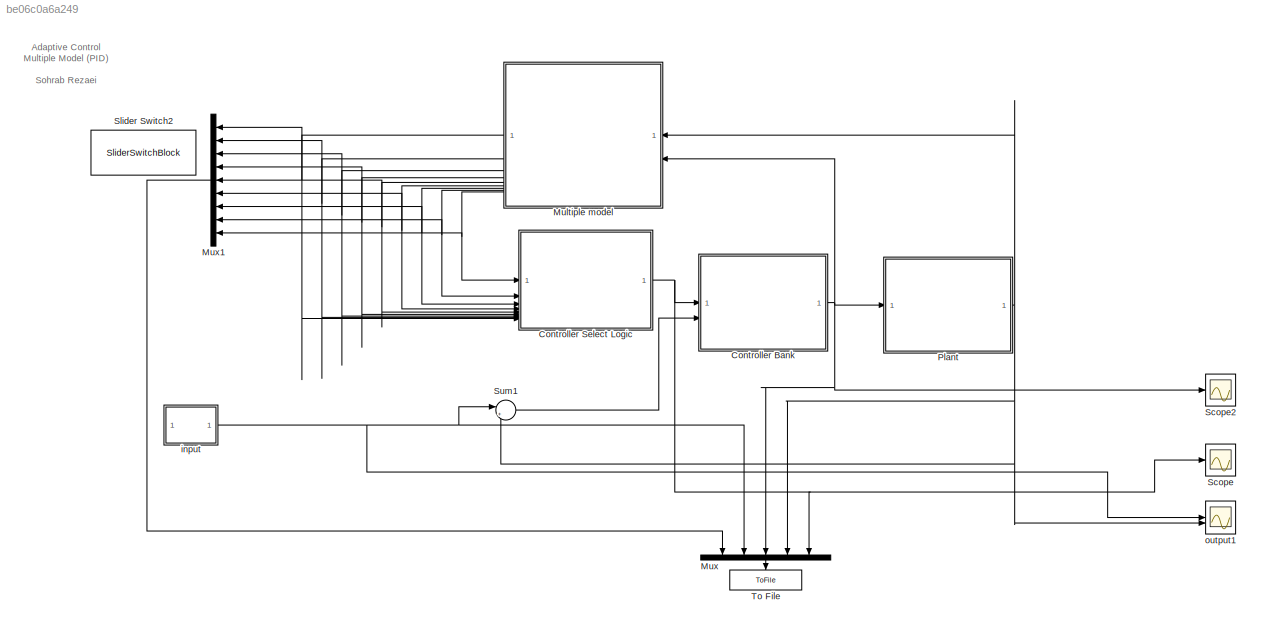
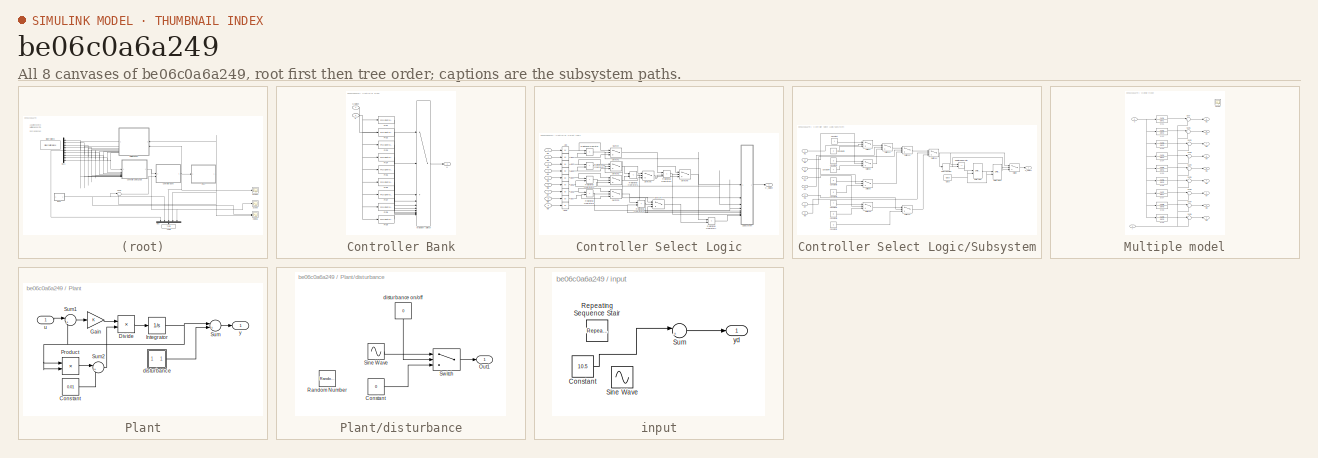
[diagram: thumbnail index - all 8 canvases of the model, root first then tree order]
MODEL slx_be06c0a6a249
KIND model
CONFIG AbsTol = auto
CONFIG EnableMultiTasking = off
CONFIG FixedStep = auto
CONFIG MaxStep = auto
CONFIG MinStep = auto
CONFIG RelTol = 1e-3
CONFIG SampleTimeConstraint = Unconstrained
CONFIG SolverName = VariableStepAuto
CONFIG StartTime = 0.0
CONFIG StopTime = 200
BLOCK [SubSystem] Controller Bank
BLOCK [Inport] Controller Bank/C_Select
BLOCK [MultiPortSwitch] Controller Bank/Multiport Switch
  InputSameDT = off
  Inputs = 9
  SaturateOnIntegerOverflow = off
BLOCK [Reference] Controller Bank/PID1  REF=slpidlib/PID Controller
  SourceBlock = slpidlib/PID Controller
  SourceType = PID 1dof
BLOCK [Reference] Controller Bank/PID2  REF=slpidlib/PID Controller
  SourceBlock = slpidlib/PID Controller
  SourceType = PID 1dof
BLOCK [Reference] Controller Bank/PID3  REF=slpidlib/PID Controller
  SourceBlock = slpidlib/PID Controller
  SourceType = PID 1dof
BLOCK [Reference] Controller Bank/PID4  REF=slpidlib/PID Controller
  SourceBlock = slpidlib/PID Controller
  SourceType = PID 1dof
BLOCK [Reference] Controller Bank/PID5  REF=slpidlib/PID Controller
  SourceBlock = slpidlib/PID Controller
  SourceType = PID 1dof
BLOCK [Reference] Controller Bank/PID6  REF=slpidlib/PID Controller
  NameLocation = left
  SourceBlock = slpidlib/PID Controller
  SourceType = PID 1dof
BLOCK [Reference] Controller Bank/PID7  REF=slpidlib/PID Controller
  SourceBlock = slpidlib/PID Controller
  SourceType = PID 1dof
BLOCK [Reference] Controller Bank/PID8  REF=slpidlib/PID Controller
  SourceBlock = slpidlib/PID Controller
  SourceType = PID 1dof
BLOCK [Reference] Controller Bank/PID9  REF=slpidlib/PID Controller
  SourceBlock = slpidlib/PID Controller
  SourceType = PID 1dof
BLOCK [Outport] Controller Bank/U
BLOCK [Inport] Controller Bank/e
  Port = 2
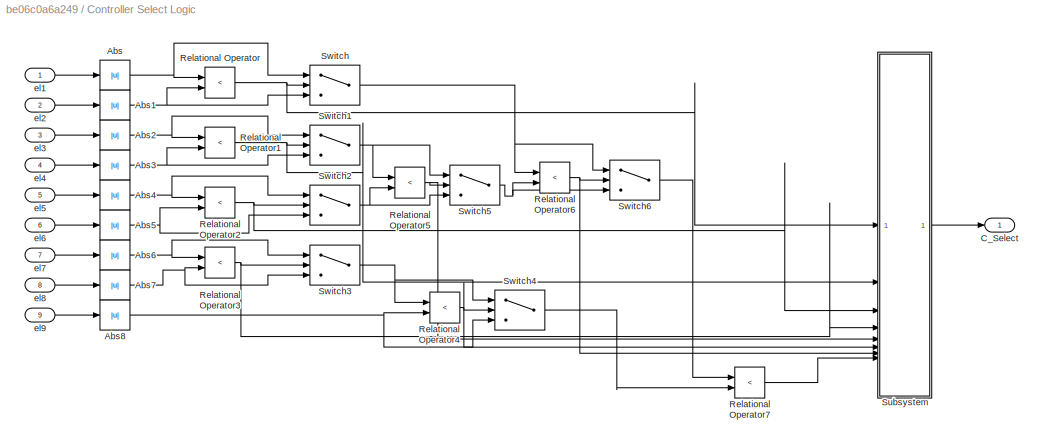
BLOCK [SubSystem] Controller Select Logic
BLOCK [Abs] Controller Select Logic/Abs
  SaturateOnIntegerOverflow = off
BLOCK [Abs] Controller Select Logic/Abs1
  SaturateOnIntegerOverflow = off
BLOCK [Abs] Controller Select Logic/Abs2
  SaturateOnIntegerOverflow = off
BLOCK [Abs] Controller Select Logic/Abs3
  SaturateOnIntegerOverflow = off
BLOCK [Abs] Controller Select Logic/Abs4
  SaturateOnIntegerOverflow = off
BLOCK [Abs] Controller Select Logic/Abs5
  SaturateOnIntegerOverflow = off
BLOCK [Abs] Controller Select Logic/Abs6
  SaturateOnIntegerOverflow = off
BLOCK [Abs] Controller Select Logic/Abs7
  SaturateOnIntegerOverflow = off
BLOCK [Abs] Controller Select Logic/Abs8
  SaturateOnIntegerOverflow = off
BLOCK [Outport] Controller Select Logic/C_Select
BLOCK [RelationalOperator] Controller Select Logic/Relational Operator
  InputSameDT = off
  Operator = <
  OutDataTypeStr = boolean
  RndMeth = Simplest
BLOCK [RelationalOperator] Controller Select Logic/Relational Operator1
  InputSameDT = off
  Operator = <
  OutDataTypeStr = boolean
  RndMeth = Simplest
BLOCK [RelationalOperator] Controller Select Logic/Relational Operator2
  InputSameDT = off
  Operator = <
  OutDataTypeStr = boolean
  RndMeth = Simplest
BLOCK [RelationalOperator] Controller Select Logic/Relational Operator3
  InputSameDT = off
  Operator = <
  OutDataTypeStr = boolean
  RndMeth = Simplest
BLOCK [RelationalOperator] Controller Select Logic/Relational Operator4
  InputSameDT = off
  Operator = <
  OutDataTypeStr = boolean
  RndMeth = Simplest
BLOCK [RelationalOperator] Controller Select Logic/Relational Operator5
  InputSameDT = off
  Operator = <
  OutDataTypeStr = boolean
  RndMeth = Simplest
BLOCK [RelationalOperator] Controller Select Logic/Relational Operator6
  InputSameDT = off
  Operator = <
  OutDataTypeStr = boolean
  RndMeth = Simplest
BLOCK [RelationalOperator] Controller Select Logic/Relational Operator7
  InputSameDT = off
  Operator = <
  OutDataTypeStr = boolean
  RndMeth = Simplest
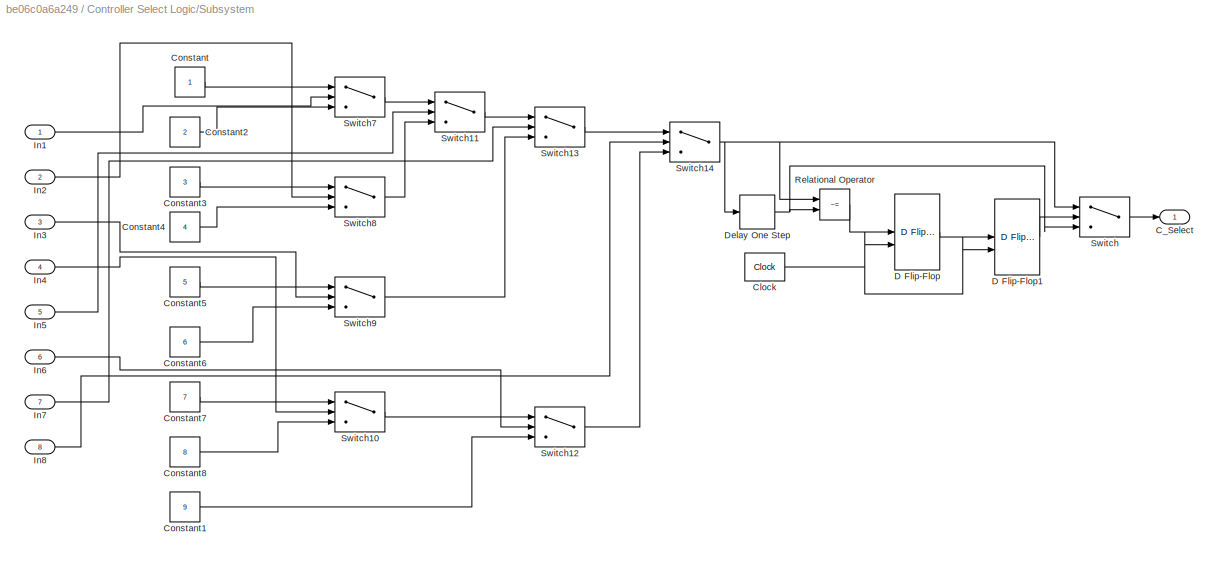
BLOCK [SubSystem] Controller Select Logic/Subsystem
BLOCK [Outport] Controller Select Logic/Subsystem/C_Select
BLOCK [Reference] Controller Select Logic/Subsystem/Clock  REF=simulink_extras/Flip Flops/Clock
  SourceBlock = simulink_extras/Flip Flops/Clock
  SourceType = Digital clock
BLOCK [Constant] Controller Select Logic/Subsystem/Constant
BLOCK [Constant] Controller Select Logic/Subsystem/Constant1
  Value = 9
BLOCK [Constant] Controller Select Logic/Subsystem/Constant2
  Value = 2
BLOCK [Constant] Controller Select Logic/Subsystem/Constant3
  Value = 3
BLOCK [Constant] Controller Select Logic/Subsystem/Constant4
  Value = 4
BLOCK [Constant] Controller Select Logic/Subsystem/Constant5
  Value = 5
BLOCK [Constant] Controller Select Logic/Subsystem/Constant6
  Value = 6
BLOCK [Constant] Controller Select Logic/Subsystem/Constant7
  Value = 7
BLOCK [Constant] Controller Select Logic/Subsystem/Constant8
  Value = 8
BLOCK [Reference] Controller Select Logic/Subsystem/D Flip-Flop  REF=simulink_extras/Flip Flops/D Flip-Flop
  SourceBlock = simulink_extras/Flip Flops/D Flip-Flop
  SourceType = DFlipFlop
BLOCK [Reference] Controller Select Logic/Subsystem/D Flip-Flop1  REF=simulink_extras/Flip Flops/D Flip-Flop
  SourceBlock = simulink_extras/Flip Flops/D Flip-Flop
  SourceType = DFlipFlop
BLOCK [Delay] Controller Select Logic/Subsystem/Delay One Step
  DelayLength = 1
  InitialCondition = 1
  InputPortMap = u0
BLOCK [Inport] Controller Select Logic/Subsystem/In1
BLOCK [Inport] Controller Select Logic/Subsystem/In2
  Port = 2
BLOCK [Inport] Controller Select Logic/Subsystem/In3
  Port = 3
BLOCK [Inport] Controller Select Logic/Subsystem/In4
  Port = 4
BLOCK [Inport] Controller Select Logic/Subsystem/In5
  Port = 5
BLOCK [Inport] Controller Select Logic/Subsystem/In6
  Port = 6
BLOCK [Inport] Controller Select Logic/Subsystem/In7
  Port = 7
BLOCK [Inport] Controller Select Logic/Subsystem/In8
  Port = 8
BLOCK [RelationalOperator] Controller Select Logic/Subsystem/Relational Operator
  InputSameDT = off
  Operator = ~=
  OutDataTypeStr = boolean
  RndMeth = Simplest
BLOCK [Switch] Controller Select Logic/Subsystem/Switch
  Criteria = u2 > Threshold
  InputSameDT = off
  SaturateOnIntegerOverflow = off
BLOCK [Switch] Controller Select Logic/Subsystem/Switch10
  Criteria = u2 > Threshold
  InputSameDT = off
  SaturateOnIntegerOverflow = off
BLOCK [Switch] Controller Select Logic/Subsystem/Switch11
  Criteria = u2 > Threshold
  InputSameDT = off
  SaturateOnIntegerOverflow = off
BLOCK [Switch] Controller Select Logic/Subsystem/Switch12
  Criteria = u2 > Threshold
  InputSameDT = off
  SaturateOnIntegerOverflow = off
BLOCK [Switch] Controller Select Logic/Subsystem/Switch13
  Criteria = u2 > Threshold
  InputSameDT = off
  SaturateOnIntegerOverflow = off
BLOCK [Switch] Controller Select Logic/Subsystem/Switch14
  Criteria = u2 > Threshold
  InputSameDT = off
  SaturateOnIntegerOverflow = off
BLOCK [Switch] Controller Select Logic/Subsystem/Switch7
  Criteria = u2 > Threshold
  InputSameDT = off
  SaturateOnIntegerOverflow = off
BLOCK [Switch] Controller Select Logic/Subsystem/Switch8
  Criteria = u2 > Threshold
  InputSameDT = off
  SaturateOnIntegerOverflow = off
BLOCK [Switch] Controller Select Logic/Subsystem/Switch9
  Criteria = u2 > Threshold
  InputSameDT = off
  SaturateOnIntegerOverflow = off
BLOCK [Switch] Controller Select Logic/Switch
  Criteria = u2 > Threshold
  InputSameDT = off
  SaturateOnIntegerOverflow = off
BLOCK [Switch] Controller Select Logic/Switch1
  Criteria = u2 > Threshold
  InputSameDT = off
  SaturateOnIntegerOverflow = off
BLOCK [Switch] Controller Select Logic/Switch2
  Criteria = u2 > Threshold
  InputSameDT = off
  SaturateOnIntegerOverflow = off
BLOCK [Switch] Controller Select Logic/Switch3
  Criteria = u2 > Threshold
  InputSameDT = off
  SaturateOnIntegerOverflow = off
BLOCK [Switch] Controller Select Logic/Switch4
  Criteria = u2 > Threshold
  InputSameDT = off
  SaturateOnIntegerOverflow = off
BLOCK [Switch] Controller Select Logic/Switch5
  Criteria = u2 > Threshold
  InputSameDT = off
  SaturateOnIntegerOverflow = off
BLOCK [Switch] Controller Select Logic/Switch6
  Criteria = u2 > Threshold
  InputSameDT = off
  SaturateOnIntegerOverflow = off
BLOCK [Inport] Controller Select Logic/el1
BLOCK [Inport] Controller Select Logic/el2
  Port = 2
BLOCK [Inport] Controller Select Logic/el3
  Port = 3
BLOCK [Inport] Controller Select Logic/el4
  Port = 4
BLOCK [Inport] Controller Select Logic/el5
  Port = 5
BLOCK [Inport] Controller Select Logic/el6
  Port = 6
BLOCK [Inport] Controller Select Logic/el7
  Port = 7
BLOCK [Inport] Controller Select Logic/el8
  Port = 8
BLOCK [Inport] Controller Select Logic/el9
  Port = 9
BLOCK [SubSystem] Multiple model
  NameLocation = top
BLOCK [Scope] Multiple model/Scope
  ActiveDisplayYMaximum = 4.56362
  ActiveDisplayYMinimum = -0.50707
  DataLoggingVariableName = ScopeData3
  Floating = off
  GraphicalSettings = {"GraphicalSettings":{"LegacySettings":true,"Style":{"Style":{"AxesColor":"[0 0 0]","ChannelNames":[""],"ColorOrder":"[1 1 0.0666666666666667;0.0745098039215686 0.623529411764706 1;1 0.411764705882353 0.16078431372549;0.392156862745098 0.831372549019608 0.0745098039215686;0.717647058823529 0.274509803921569 1;0.0588235294117647 1 1;1 0.0745098039215686 0.650980392156863]","CurrentConfiguration":"e...<+425ch>
  MultipleDisplayCache = [{"MaxYLimMag":4.56362,"MaxYLimReal":4.56362,"MinYLimMag":0,"MinYLimReal":-0.50707,"PlotAsMagnitudePhase":false,"ShowGrid":true,"ShowLegend":false,"Title":"%<SignalLabel>","YLabel":""}]
  NumInputPorts = 1
  WasSavedAsWebScope = on
BLOCK [Sum] Multiple model/Sum
  Inputs = |+-
BLOCK [Sum] Multiple model/Sum1
  Inputs = |+-
BLOCK [Sum] Multiple model/Sum2
  Inputs = |+-
BLOCK [Sum] Multiple model/Sum3
  Inputs = |+-
BLOCK [Sum] Multiple model/Sum4
  Inputs = |+-
BLOCK [Sum] Multiple model/Sum5
  Inputs = |+-
BLOCK [Sum] Multiple model/Sum6
  Inputs = |+-
BLOCK [Sum] Multiple model/Sum7
  Inputs = |+-
BLOCK [Sum] Multiple model/Sum8
  Inputs = |+-
BLOCK [Outport] Multiple model/el1
  Port = 9
BLOCK [Outport] Multiple model/el2
  Port = 8
BLOCK [Outport] Multiple model/el3
  Port = 7
BLOCK [Outport] Multiple model/el4
  Port = 6
BLOCK [Outport] Multiple model/el5
  Port = 5
BLOCK [Outport] Multiple model/el6
  Port = 4
BLOCK [Outport] Multiple model/el7
  Port = 3
BLOCK [Outport] Multiple model/el8
  Port = 2
BLOCK [Outport] Multiple model/el9
BLOCK [TransferFcn] Multiple model/sys1
  Denominator = den1
  Numerator = num1
BLOCK [TransferFcn] Multiple model/sys2
  Denominator = den2
  Numerator = num2
BLOCK [TransferFcn] Multiple model/sys3
  Denominator = den3
  Numerator = num3
BLOCK [TransferFcn] Multiple model/sys4
  Denominator = den4
  Numerator = num4
BLOCK [TransferFcn] Multiple model/sys5
  Denominator = den5
  Numerator = num5
BLOCK [TransferFcn] Multiple model/sys6
  Denominator = den6
  Numerator = num6
BLOCK [TransferFcn] Multiple model/sys7
  Denominator = den7
  Numerator = num7
BLOCK [TransferFcn] Multiple model/sys8
  Denominator = den8
  Numerator = num8
BLOCK [TransferFcn] Multiple model/sys9
  Denominator = den9
  Numerator = num9
BLOCK [Inport] Multiple model/u
  NameLocation = top
  Port = 2
BLOCK [Inport] Multiple model/y
BLOCK [Mux] Mux
  DisplayOption = bar
  Inputs = 5
  NameLocation = left
BLOCK [Mux] Mux1
  DisplayOption = bar
  Inputs = 9
  NameLocation = top
BLOCK [SubSystem] Plant
BLOCK [Constant] Plant/Constant
  Value = 0.01
BLOCK [Product] Plant/Divide
  Inputs = */
BLOCK [Gain] Plant/Gain
BLOCK [Integrator] Plant/Integrator
  InitialCondition = 9
BLOCK [Product] Plant/Product
BLOCK [Sum] Plant/Sum
  Inputs = |++
BLOCK [Sum] Plant/Sum1
  Inputs = |+-
BLOCK [Sum] Plant/Sum2
  Inputs = |++
BLOCK [SubSystem] Plant/disturbance
  NameLocation = right
BLOCK [Constant] Plant/disturbance/Constant
  Value = 0
BLOCK [Outport] Plant/disturbance/Out1
BLOCK [RandomNumber] Plant/disturbance/Random Number
  SampleTime = 0.1
BLOCK [Sin] Plant/disturbance/Sine Wave
  Amplitude = 0.01
  Frequency = 10
  SampleTime = 0
BLOCK [Switch] Plant/disturbance/Switch
  Criteria = u2 > Threshold
  InputSameDT = off
  SaturateOnIntegerOverflow = off
BLOCK [Constant] Plant/disturbance/disturbance on//off
  NameLocation = left
  Value = 0
BLOCK [Inport] Plant/u
BLOCK [Outport] Plant/y
BLOCK [Scope] Scope
  ActiveDisplayYMinimum = 0
  DataLoggingVariableName = ScopeData2
  Floating = off
  GraphicalSettings = {"GraphicalSettings":{"LegacySettings":true,"Style":{"AxesScalingProperties":{"ScaleAxesLimitsAtStop":false},"Style":{"AxesColor":"[1 1 1]","BackgroundColor":"[1 1 1]","ChannelNames":[""],"ColorOrder":"[0 0.447058823529412 0.741176470588235;0.850980392156863 0.325490196078431 0.0980392156862745;0.929411764705882 0.694117647058824 0.125490196078431;0.494117647058824 0.184313725490196 0.556862745098...<+593ch>
  MultipleDisplayCache = [{"MaxYLimMag":10,"MaxYLimReal":10,"MinYLimMag":0,"MinYLimReal":0,"PlotAsMagnitudePhase":false,"ShowGrid":true,"ShowLegend":false,"Title":"%<SignalLabel>","YLabel":""}]
  NumInputPorts = 1
  WasSavedAsWebScope = on
BLOCK [Scope] Scope2
  ActiveDisplayYMaximum = 730.94835
  ActiveDisplayYMinimum = -574.94962
  DataLoggingVariableName = ScopeData2
  Floating = off
  GraphicalSettings = {"GraphicalSettings":{"LegacySettings":true,"Style":{"AxesScalingProperties":{"ScaleAxesLimitsAtStop":false},"Style":{"AxesColor":"[1 1 1]","BackgroundColor":"[1 1 1]","ChannelNames":[""],"ColorOrder":"[0 0.447058823529412 0.741176470588235;0.850980392156863 0.325490196078431 0.0980392156862745;0.929411764705882 0.694117647058824 0.125490196078431;0.494117647058824 0.184313725490196 0.556862745098...<+593ch>
  MultipleDisplayCache = [{"MaxYLimMag":730.94835,"MaxYLimReal":730.94835,"MinYLimMag":0,"MinYLimReal":-574.94962,"PlotAsMagnitudePhase":false,"ShowGrid":true,"ShowLegend":false,"Title":"%<SignalLabel>","YLabel":""}]
  NumInputPorts = 1
  WasSavedAsWebScope = on
BLOCK [SliderSwitchBlock] Slider Switch2
BLOCK [Sum] Sum1
  Inputs = |+-
BLOCK [ToFile] To File
  Filename = MMPID.mat
  MatrixName = data
  NameLocation = left
BLOCK [SubSystem] input
BLOCK [Constant] input/Constant
  Value = 10.5
BLOCK [Reference] input/Repeating Sequence Stair  REF=simulink/Sources/Repeating
Sequence
Stair
  SourceBlock = simulink/Sources/Repeating\nSequence\nStair
  SourceType = Repeating Sequence Stair
BLOCK [Sin] input/Sine Wave
  Bias = 11
  Frequency = 0.3
  SampleTime = 0
BLOCK [Sum] input/Sum
  Inputs = |++
BLOCK [Outport] input/yd
BLOCK [Scope] output1
  ActiveDisplayYMaximum = 13.23167
  ActiveDisplayYMinimum = 8.52981
  DataLoggingVariableName = ScopeData3
  Floating = off
  GraphicalSettings = {"GraphicalSettings":{"LegacySettings":true,"Style":{"AxesScalingProperties":{"ScaleAxesLimitsAtStop":false},"Style":{"AxesColor":"[1 1 1]","BackgroundColor":"[1 1 1]","ChannelNames":[""],"ColorOrder":"[0 0.447058823529412 0.741176470588235;0.850980392156863 0.325490196078431 0.0980392156862745;0.929411764705882 0.694117647058824 0.125490196078431;0.494117647058824 0.184313725490196 0.556862745098...<+627ch>
  MultipleDisplayCache = [{"MaxYLimMag":13.23167,"MaxYLimReal":13.23167,"MinYLimMag":8.52981,"MinYLimReal":8.52981,"PlotAsMagnitudePhase":false,"ShowGrid":true,"ShowLegend":false,"Title":"%<SignalLabel>","YLabel":""}]
  NumInputPorts = 2
  WasSavedAsWebScope = on
ANNOTATION (root): Adaptive Control Multiple Model (PID) Sohrab Rezaei
LINE Controller Bank/C_Select:1 -> Controller Bank/Multiport Switch:1
LINE Controller Bank/Multiport Switch:1 -> Controller Bank/U:1
LINE Controller Bank/PID1:1 -> Controller Bank/Multiport Switch:2
LINE Controller Bank/PID2:1 -> Controller Bank/Multiport Switch:3
LINE Controller Bank/PID3:1 -> Controller Bank/Multiport Switch:4
LINE Controller Bank/PID4:1 -> Controller Bank/Multiport Switch:5
LINE Controller Bank/PID5:1 -> Controller Bank/Multiport Switch:6
LINE Controller Bank/PID6:1 -> Controller Bank/Multiport Switch:7
LINE Controller Bank/PID7:1 -> Controller Bank/Multiport Switch:8
LINE Controller Bank/PID8:1 -> Controller Bank/Multiport Switch:9
LINE Controller Bank/PID9:1 -> Controller Bank/Multiport Switch:10
NET Controller Bank/e:1 -> Controller Bank/PID1:1, Controller Bank/PID2:1, Controller Bank/PID3:1, Controller Bank/PID4:1, Controller Bank/PID5:1, Controller Bank/PID6:1, Controller Bank/PID7:1, Controller Bank/PID8:1, Controller Bank/PID9:1
NET Controller Bank:1 -> Multiple model:2, Mux:3, Plant:1, Scope2:1
NET Controller Select Logic/Abs1:1 -> Controller Select Logic/Relational Operator:2, Controller Select Logic/Switch:3
NET Controller Select Logic/Abs2:1 -> Controller Select Logic/Relational Operator1:1, Controller Select Logic/Switch1:1
NET Controller Select Logic/Abs3:1 -> Controller Select Logic/Relational Operator1:2, Controller Select Logic/Switch1:3
NET Controller Select Logic/Abs4:1 -> Controller Select Logic/Relational Operator2:1, Controller Select Logic/Switch2:1
NET Controller Select Logic/Abs5:1 -> Controller Select Logic/Relational Operator2:2, Controller Select Logic/Switch2:3
NET Controller Select Logic/Abs6:1 -> Controller Select Logic/Relational Operator3:1, Controller Select Logic/Switch3:1
NET Controller Select Logic/Abs7:1 -> Controller Select Logic/Relational Operator3:2, Controller Select Logic/Switch3:3
NET Controller Select Logic/Abs8:1 -> Controller Select Logic/Relational Operator4:2, Controller Select Logic/Switch4:3
NET Controller Select Logic/Abs:1 -> Controller Select Logic/Relational Operator:1, Controller Select Logic/Switch:1
NET Controller Select Logic/Relational Operator1:1 -> Controller Select Logic/Subsystem:2, Controller Select Logic/Switch1:2
NET Controller Select Logic/Relational Operator2:1 -> Controller Select Logic/Subsystem:3, Controller Select Logic/Switch2:2
NET Controller Select Logic/Relational Operator3:1 -> Controller Select Logic/Subsystem:4, Controller Select Logic/Switch3:2
NET Controller Select Logic/Relational Operator4:1 -> Controller Select Logic/Subsystem:6, Controller Select Logic/Switch4:2
NET Controller Select Logic/Relational Operator5:1 -> Controller Select Logic/Subsystem:5, Controller Select Logic/Switch5:2
NET Controller Select Logic/Relational Operator6:1 -> Controller Select Logic/Subsystem:7, Controller Select Logic/Switch6:2
LINE Controller Select Logic/Relational Operator7:1 -> Controller Select Logic/Subsystem:8
NET Controller Select Logic/Relational Operator:1 -> Controller Select Logic/Subsystem:1, Controller Select Logic/Switch:2
NET Controller Select Logic/Subsystem/Clock:1 -> Controller Select Logic/Subsystem/D Flip-Flop1:2, Controller Select Logic/Subsystem/D Flip-Flop:2
LINE Controller Select Logic/Subsystem/Constant1:1 -> Controller Select Logic/Subsystem/Switch12:3
LINE Controller Select Logic/Subsystem/Constant2:1 -> Controller Select Logic/Subsystem/Switch7:3
LINE Controller Select Logic/Subsystem/Constant3:1 -> Controller Select Logic/Subsystem/Switch8:1
LINE Controller Select Logic/Subsystem/Constant4:1 -> Controller Select Logic/Subsystem/Switch8:3
LINE Controller Select Logic/Subsystem/Constant5:1 -> Controller Select Logic/Subsystem/Switch9:1
LINE Controller Select Logic/Subsystem/Constant6:1 -> Controller Select Logic/Subsystem/Switch9:3
LINE Controller Select Logic/Subsystem/Constant7:1 -> Controller Select Logic/Subsystem/Switch10:1
LINE Controller Select Logic/Subsystem/Constant8:1 -> Controller Select Logic/Subsystem/Switch10:3
LINE Controller Select Logic/Subsystem/Constant:1 -> Controller Select Logic/Subsystem/Switch7:1
LINE Controller Select Logic/Subsystem/D Flip-Flop1:1 -> Controller Select Logic/Subsystem/Switch:2
LINE Controller Select Logic/Subsystem/D Flip-Flop:1 -> Controller Select Logic/Subsystem/D Flip-Flop1:1
NET Controller Select Logic/Subsystem/Delay One Step:1 -> Controller Select Logic/Subsystem/Relational Operator:2, Controller Select Logic/Subsystem/Switch:3
LINE Controller Select Logic/Subsystem/In1:1 -> Controller Select Logic/Subsystem/Switch7:2
LINE Controller Select Logic/Subsystem/In2:1 -> Controller Select Logic/Subsystem/Switch8:2
LINE Controller Select Logic/Subsystem/In3:1 -> Controller Select Logic/Subsystem/Switch9:2
LINE Controller Select Logic/Subsystem/In4:1 -> Controller Select Logic/Subsystem/Switch10:2
LINE Controller Select Logic/Subsystem/In5:1 -> Controller Select Logic/Subsystem/Switch11:2
LINE Controller Select Logic/Subsystem/In6:1 -> Controller Select Logic/Subsystem/Switch12:2
LINE Controller Select Logic/Subsystem/In7:1 -> Controller Select Logic/Subsystem/Switch13:2
LINE Controller Select Logic/Subsystem/In8:1 -> Controller Select Logic/Subsystem/Switch14:2
LINE Controller Select Logic/Subsystem/Relational Operator:1 -> Controller Select Logic/Subsystem/D Flip-Flop:1
LINE Controller Select Logic/Subsystem/Switch10:1 -> Controller Select Logic/Subsystem/Switch12:1
LINE Controller Select Logic/Subsystem/Switch11:1 -> Controller Select Logic/Subsystem/Switch13:1
LINE Controller Select Logic/Subsystem/Switch12:1 -> Controller Select Logic/Subsystem/Switch14:3
LINE Controller Select Logic/Subsystem/Switch13:1 -> Controller Select Logic/Subsystem/Switch14:1
NET Controller Select Logic/Subsystem/Switch14:1 -> Controller Select Logic/Subsystem/Delay One Step:1, Controller Select Logic/Subsystem/Relational Operator:1, Controller Select Logic/Subsystem/Switch:1
LINE Controller Select Logic/Subsystem/Switch7:1 -> Controller Select Logic/Subsystem/Switch11:1
LINE Controller Select Logic/Subsystem/Switch8:1 -> Controller Select Logic/Subsystem/Switch11:3
LINE Controller Select Logic/Subsystem/Switch9:1 -> Controller Select Logic/Subsystem/Switch13:3
LINE Controller Select Logic/Subsystem/Switch:1 -> Controller Select Logic/Subsystem/C_Select:1
LINE Controller Select Logic/Subsystem:1 -> Controller Select Logic/C_Select:1
NET Controller Select Logic/Switch1:1 -> Controller Select Logic/Relational Operator5:1, Controller Select Logic/Switch5:1
NET Controller Select Logic/Switch2:1 -> Controller Select Logic/Relational Operator5:2, Controller Select Logic/Switch5:3
NET Controller Select Logic/Switch3:1 -> Controller Select Logic/Relational Operator4:1, Controller Select Logic/Switch4:1
LINE Controller Select Logic/Switch4:1 -> Controller Select Logic/Relational Operator7:2
NET Controller Select Logic/Switch5:1 -> Controller Select Logic/Relational Operator6:2, Controller Select Logic/Switch6:3
LINE Controller Select Logic/Switch6:1 -> Controller Select Logic/Relational Operator7:1
NET Controller Select Logic/Switch:1 -> Controller Select Logic/Relational Operator6:1, Controller Select Logic/Switch6:1
LINE Controller Select Logic/el1:1 -> Controller Select Logic/Abs:1
LINE Controller Select Logic/el2:1 -> Controller Select Logic/Abs1:1
LINE Controller Select Logic/el3:1 -> Controller Select Logic/Abs2:1
LINE Controller Select Logic/el4:1 -> Controller Select Logic/Abs3:1
LINE Controller Select Logic/el5:1 -> Controller Select Logic/Abs4:1
LINE Controller Select Logic/el6:1 -> Controller Select Logic/Abs5:1
LINE Controller Select Logic/el7:1 -> Controller Select Logic/Abs6:1
LINE Controller Select Logic/el8:1 -> Controller Select Logic/Abs7:1
LINE Controller Select Logic/el9:1 -> Controller Select Logic/Abs8:1
NET Controller Select Logic:1 -> Controller Bank:1, Mux:5, Scope:1
LINE Multiple model/Sum1:1 -> Multiple model/el2:1
LINE Multiple model/Sum2:1 -> Multiple model/el3:1
LINE Multiple model/Sum3:1 -> Multiple model/el4:1
LINE Multiple model/Sum4:1 -> Multiple model/el5:1
LINE Multiple model/Sum5:1 -> Multiple model/el6:1
LINE Multiple model/Sum6:1 -> Multiple model/el7:1
LINE Multiple model/Sum7:1 -> Multiple model/el8:1
LINE Multiple model/Sum8:1 -> Multiple model/el9:1
LINE Multiple model/Sum:1 -> Multiple model/el1:1
LINE Multiple model/sys1:1 -> Multiple model/Sum:1
LINE Multiple model/sys2:1 -> Multiple model/Sum1:1
LINE Multiple model/sys3:1 -> Multiple model/Sum2:1
LINE Multiple model/sys4:1 -> Multiple model/Sum3:1
LINE Multiple model/sys5:1 -> Multiple model/Sum4:1
LINE Multiple model/sys6:1 -> Multiple model/Sum5:1
LINE Multiple model/sys7:1 -> Multiple model/Sum6:1
LINE Multiple model/sys8:1 -> Multiple model/Sum7:1
LINE Multiple model/sys9:1 -> Multiple model/Sum8:1
NET Multiple model/u:1 -> Multiple model/sys1:1, Multiple model/sys2:1, Multiple model/sys3:1, Multiple model/sys4:1, Multiple model/sys5:1, Multiple model/sys6:1, Multiple model/sys7:1, Multiple model/sys8:1, Multiple model/sys9:1
NET Multiple model/y:1 -> Multiple model/Sum1:2, Multiple model/Sum2:2, Multiple model/Sum3:2, Multiple model/Sum4:2, Multiple model/Sum5:2, Multiple model/Sum6:2, Multiple model/Sum7:2, Multiple model/Sum8:2, Multiple model/Sum:2
NET Multiple model:1 -> Controller Select Logic:9, Mux1:1
NET Multiple model:2 -> Controller Select Logic:8, Mux1:2
NET Multiple model:3 -> Controller Select Logic:7, Mux1:3
NET Multiple model:4 -> Controller Select Logic:6, Mux1:4
NET Multiple model:5 -> Controller Select Logic:5, Mux1:5
NET Multiple model:6 -> Controller Select Logic:4, Mux1:6
NET Multiple model:7 -> Controller Select Logic:3, Mux1:7
NET Multiple model:8 -> Controller Select Logic:2, Mux1:8
NET Multiple model:9 -> Controller Select Logic:1, Mux1:9
LINE Mux1:1 -> Mux:1
LINE Mux:1 -> To File:1
LINE Plant/Constant:1 -> Plant/Sum2:2
LINE Plant/Divide:1 -> Plant/Integrator:1
LINE Plant/Gain:1 -> Plant/Divide:1
NET Plant/Integrator:1 -> Plant/Product:1, Plant/Product:2, Plant/Sum1:2, Plant/Sum:1
LINE Plant/Product:1 -> Plant/Sum2:1
LINE Plant/Sum1:1 -> Plant/Gain:1
LINE Plant/Sum2:1 -> Plant/Divide:2
LINE Plant/Sum:1 -> Plant/y:1
LINE Plant/disturbance/Constant:1 -> Plant/disturbance/Switch:3
LINE Plant/disturbance/Sine Wave:1 -> Plant/disturbance/Switch:1
LINE Plant/disturbance/Switch:1 -> Plant/disturbance/Out1:1
LINE Plant/disturbance/disturbance on//off:1 -> Plant/disturbance/Switch:2
LINE Plant/disturbance:1 -> Plant/Sum:2
LINE Plant/u:1 -> Plant/Sum1:1
NET Plant:1 -> Multiple model:1, Mux:4, Sum1:2, output1:2
LINE Sum1:1 -> Controller Bank:2
LINE input/Constant:1 -> input/Sum:1
LINE input/Sum:1 -> input/yd:1
NET input:1 -> Mux:2, Sum1:1, output1:1
note: NET lines group one-source signal fan-out (src -> all destinations, sorted); 1:1 wires keep LINE
